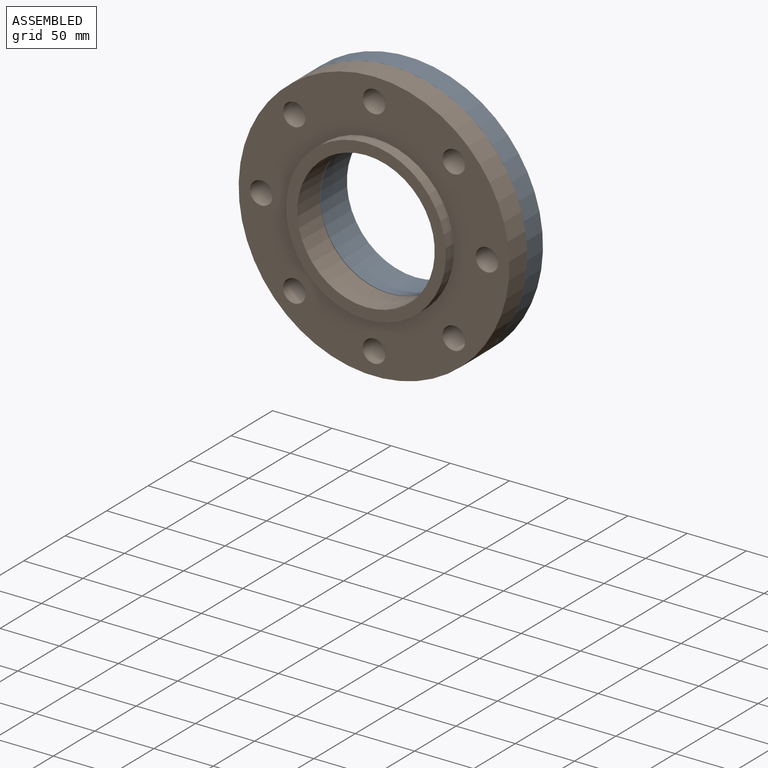
[diagram: assembled view]
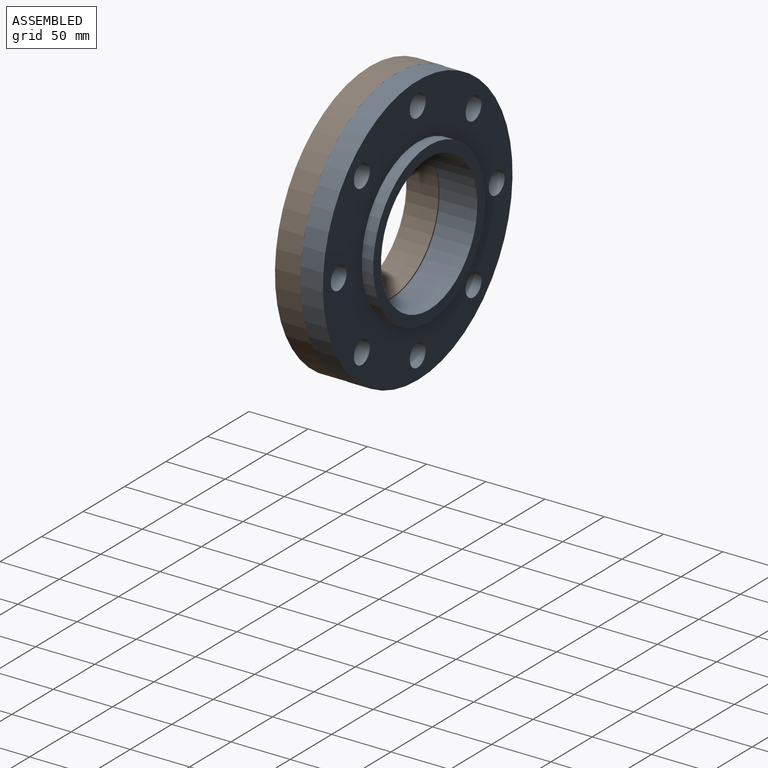
[diagram: assembled view, second angle]
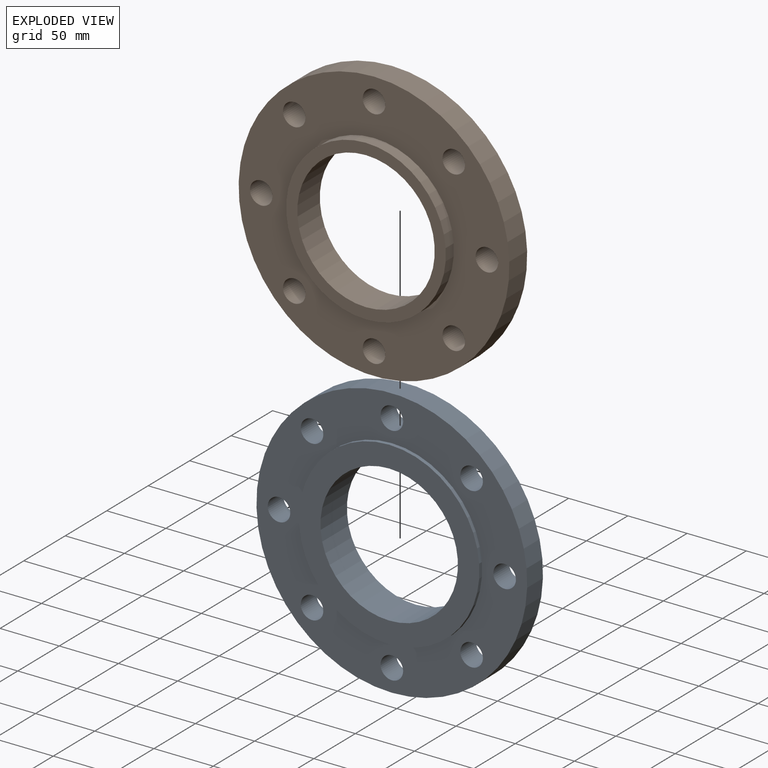
[diagram: exploded view]
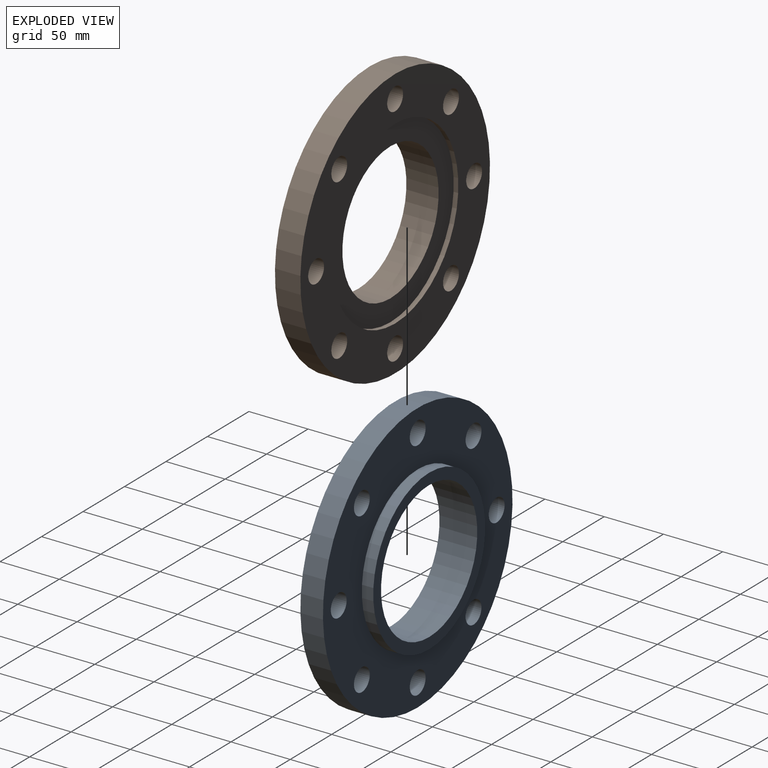
[diagram: exploded view, second angle]
ASSEMBLY  parts=2 mates=2
PART A: 16 faces, bbox 228.6x31.9x228.6 mm
  f0: cylinder r=114.3mm len=228.6mm, axis (0,-1,0), area 13681.1mm2, adj f11,f15
  f1: plane 152.4x152.4mm, normal (0,-1,0), area 7658.9mm2, adj f10,f14
  f2: cylinder r=9.53mm len=19.05mm, axis (0,-1,0), area 1140.1mm2, adj f11,f15
  f3: cylinder r=9.53mm len=19.05mm, axis (0,-1,0), area 1140.1mm2, adj f11,f15
  f4: cylinder r=9.53mm len=19.05mm, axis (0,-1,0), area 1140.1mm2, adj f11,f15
  f5: cylinder r=9.53mm len=19.05mm, axis (0,-1,0), area 1140.1mm2, adj f11,f15
  f6: cylinder r=9.53mm len=19.05mm, axis (0,-1,0), area 1140.1mm2, adj f11,f15
  f7: cylinder r=9.53mm len=19.05mm, axis (0,-1,0), area 1140.1mm2, adj f11,f15
  f8: cylinder r=9.53mm len=19.05mm, axis (0,-1,0), area 1140.1mm2, adj f11,f15
  f9: cylinder r=9.53mm len=19.05mm, axis (0,-1,0), area 1140.1mm2, adj f11,f15
  f10: cylinder r=58.04mm len=116.08mm, axis (0,-1,0), area 11624.6mm2, adj f1,f13
  f11: plane 228.6x228.6mm, normal (0,1,0), area 24475.9mm2, adj f0,f2,f3,f4,f5,f6,f7,f8
  f12: cylinder r=67.44mm len=134.87mm, axis (0,-1,0), area 4089.7mm2, adj f11,f13
  f13: plane 134.87x134.87mm, normal (0,1,0), area 3704.6mm2, adj f10,f12
  f14: cylinder r=76.2mm len=152.4mm, axis (0,-1,0), area 1520.1mm2, adj f1,f15
  f15: plane 228.6x228.6mm, normal (0,-1,0), area 20521.7mm2, adj f0,f2,f3,f4,f5,f6,f7,f8
PART B: 16 faces, bbox 228.6x31.1x228.6 mm
  f0: cylinder r=58.04mm len=116.08mm, axis (0,-1,0), area 9911mm2, adj f13,f15
  f1: cylinder r=114.3mm len=228.6mm, axis (0,-1,0), area 15414mm2, adj f2,f3
  f2: plane 228.6x228.6mm, normal (0,1,0), area 24475.9mm2, adj f1,f4,f5,f6,f7,f8,f9,f10
  f3: plane 228.6x228.6mm, normal (0,-1,0), area 20521.7mm2, adj f1,f4,f5,f6,f7,f8,f9,f10
  f4: cylinder r=9.53mm len=21.46mm, axis (0,-1,0), area 1284.5mm2, adj f2,f3
  f5: cylinder r=9.53mm len=21.46mm, axis (0,-1,0), area 1284.5mm2, adj f2,f3
  f6: cylinder r=9.53mm len=21.46mm, axis (0,-1,0), area 1284.5mm2, adj f2,f3
  f7: cylinder r=9.53mm len=21.46mm, axis (0,-1,0), area 1284.5mm2, adj f2,f3
  f8: cylinder r=9.53mm len=21.46mm, axis (0,-1,0), area 1284.5mm2, adj f2,f3
  f9: cylinder r=9.53mm len=21.46mm, axis (0,-1,0), area 1284.5mm2, adj f2,f3
  f10: cylinder r=9.53mm len=21.46mm, axis (0,-1,0), area 1284.5mm2, adj f2,f3
  f11: cylinder r=9.53mm len=21.46mm, axis (0,-1,0), area 1284.5mm2, adj f2,f3
  f12: cylinder r=67.44mm len=134.87mm, axis (0,-1,0), area 4089.7mm2, adj f2,f13
  f13: plane 134.87x134.87mm, normal (0,1,0), area 3704.6mm2, adj f0,f12
  f14: cylinder r=76.2mm len=152.4mm, axis (0,-1,0), area 1885mm2, adj f3,f15
  f15: plane 152.4x152.4mm, normal (0,-1,0), area 7658.9mm2, adj f0,f14
PLACE A rot(axis=(0.01,0.02,-1),0deg) t=(-111.57,-92.65,-51.42)mm
PLACE B rot(axis=(-1,0,0),180deg) t=(-111.57,-89.48,-51.42)mm
MATE slider B.f0 <-> A.f10  axis (0,1,0) through (-111.57,-93.41,-51.42)mm
MATE planar A.f0 <-> B.f1  axis (0,-1,0) through (-111.57,-89.48,-51.42)mm
